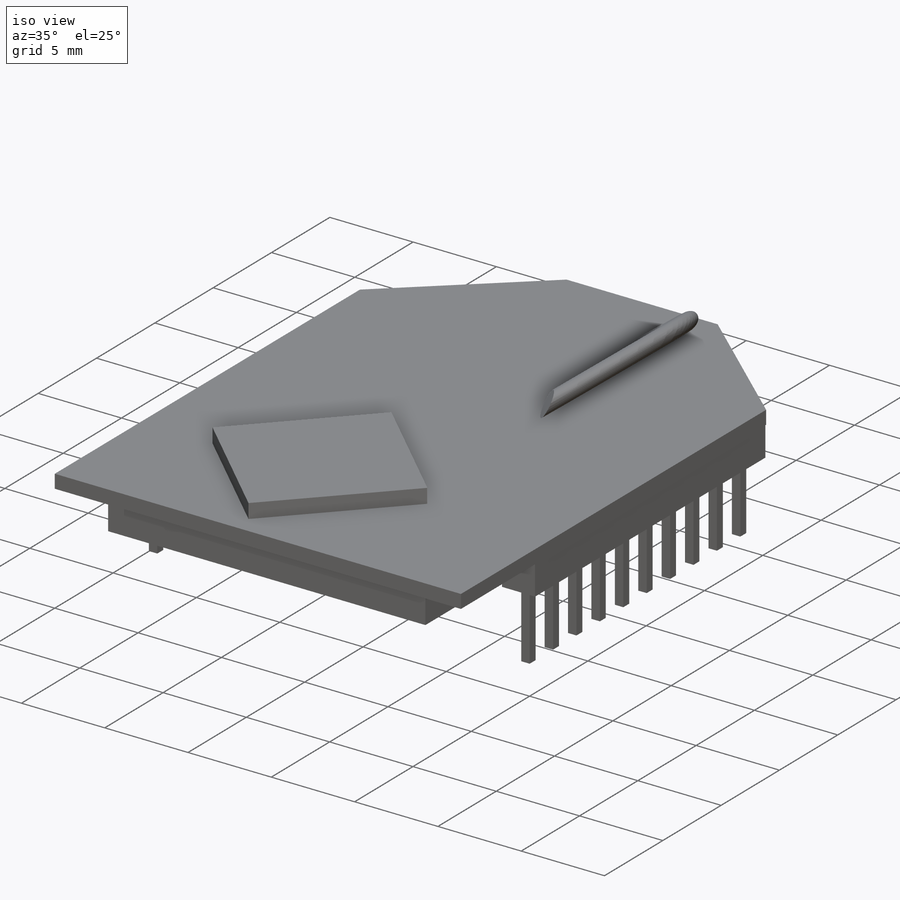
[diagram: iso view]
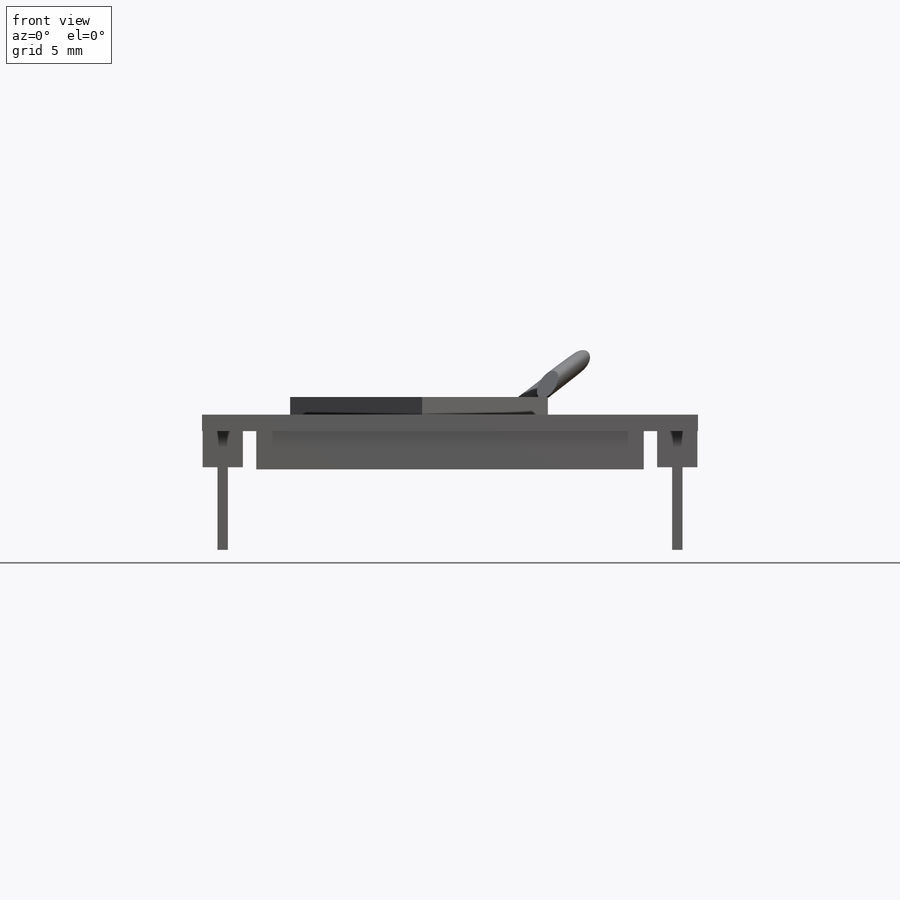
[diagram: front view]
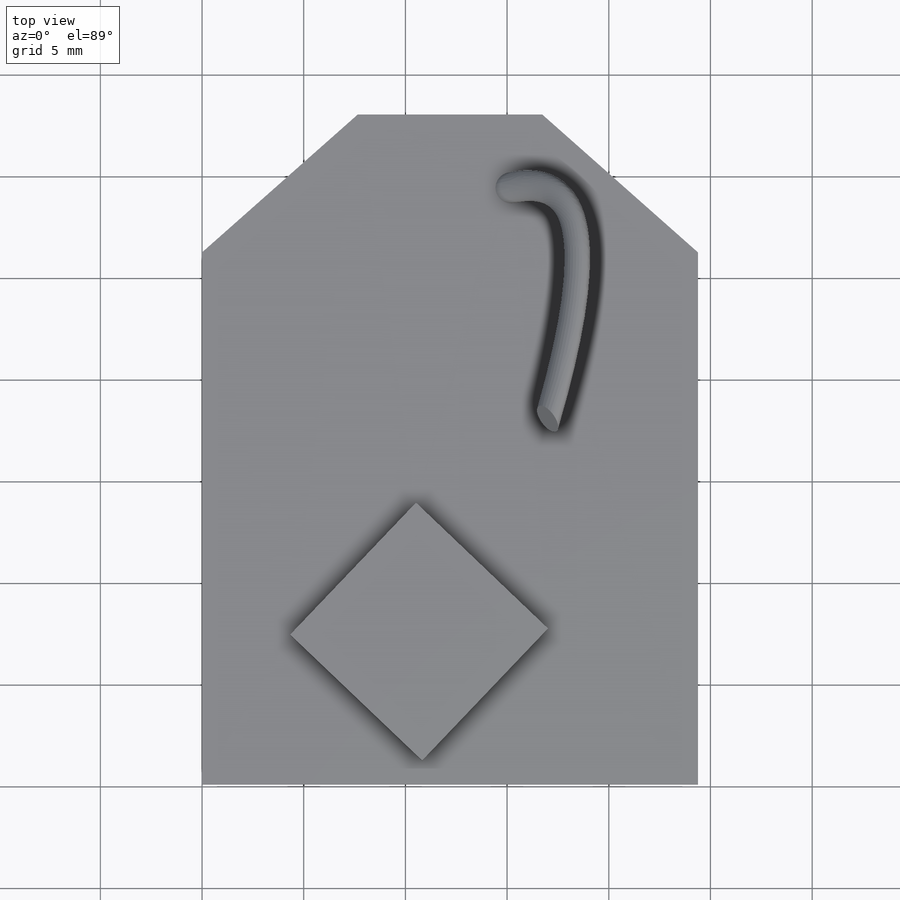
[diagram: top view]
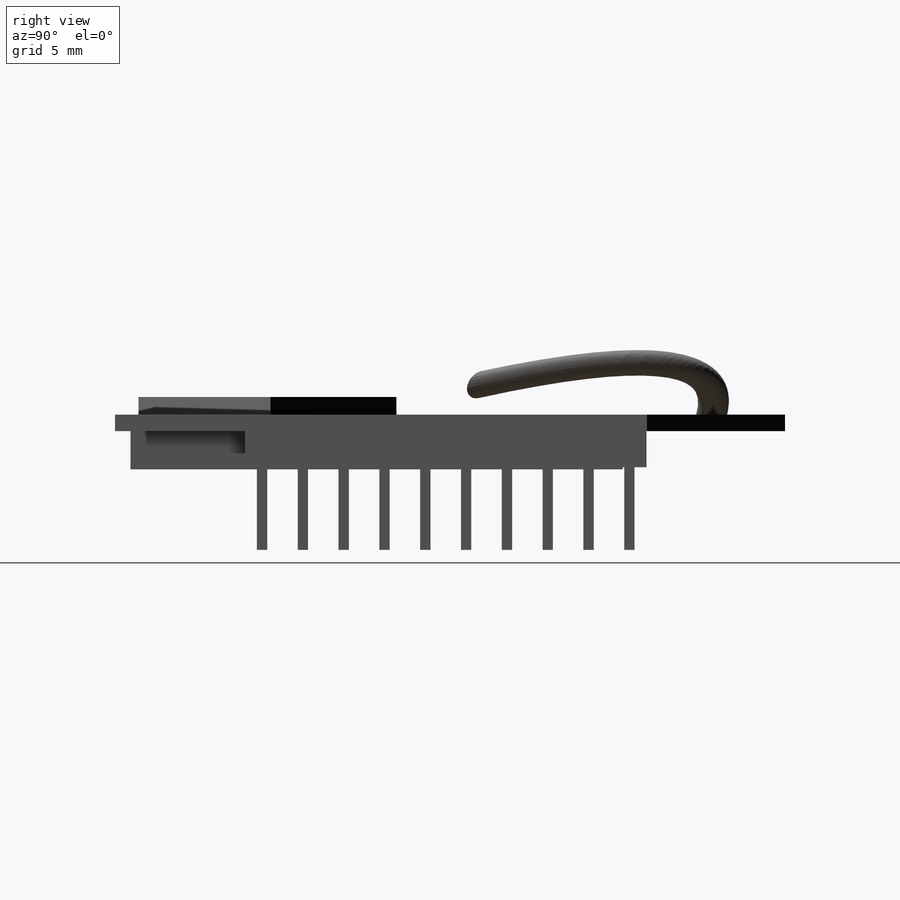
[diagram: right view]
SOLIDWORKS PART (.sldprt)
format: sldprt  version: not decoded by parser v0  size: 395,776 bytes
history: native  units: mm
features: sketch x7, extrude x5, material x1, sweep x1 (+13 scaffold rows collapsed)
feature tree (27):
  scaffold x13  (default folders/planes/origin — collapsed)
  material  "Material <not specified>"
  sketch  "Sketch1"  dims[D1=24.384mm D2=32.9438mm D3=26.162mm D4=9.0678mm]
  extrude  "Boss-Extrude1"  Depth=0.8128mm
  sketch  "Sketch2"  dims[D1=19.05mm D2=24.2062mm D3=0.762mm]
  extrude  "Boss-Extrude2"  Depth=1.8796mm
  sketch  "Sketch3"  dims[D1=8.9662mm D2=20.0533mm D3=31.7881mm D4=13.5636mm]
  extrude  "Boss-Extrude3"  Depth=0.8636mm
  sketch  "Sketch4"  dims[c1.D1=1.9812mm c1.D2=19.75mm c1.D3=26.32mm c1.D4=0.0254mm c2.D3=0.0254mm]
  extrude  "Boss-Extrude4"  Depth=1.778mm
  sketch  "Sketch5"  dims[D1=0.508mm D2=2.0066mm D3=10.0]
  extrude  "Boss-Extrude5"  Depth=4.064mm
  sketch  "Sketch6"  dims[D1=1.524mm D2=15.9512mm D3=30.099mm]
  sketch  "3DSketch1"
  sweep  "Sweep2"
decode coverage: 11 of 13 modeling features carry decoded parameters
note: suppression state not decoded; provenance and decode notes live in map.json
